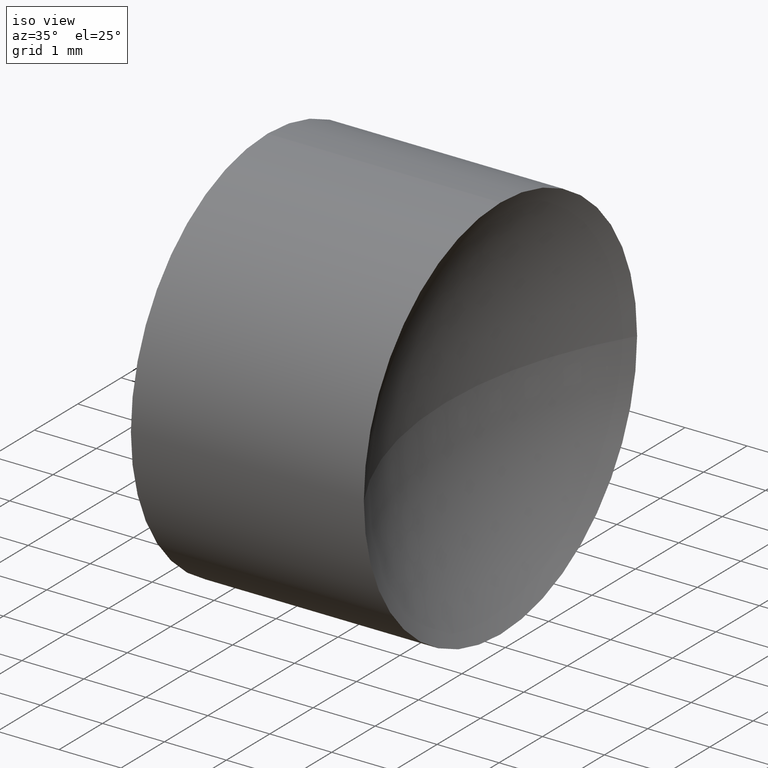
[diagram: clean part render]
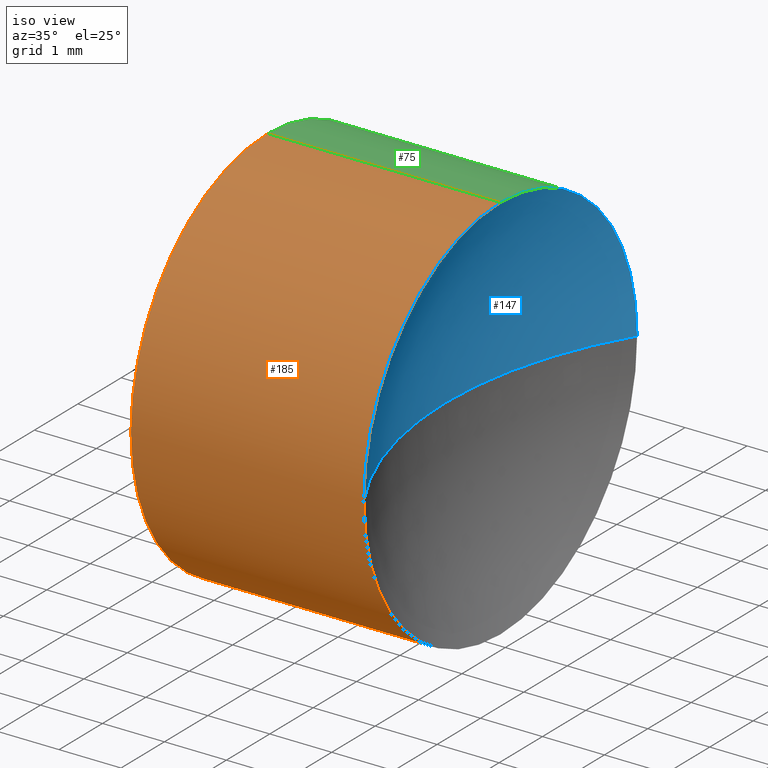
[diagram: same view with three faces highlighted in distinct colors, each labeled with its STEP entity id]
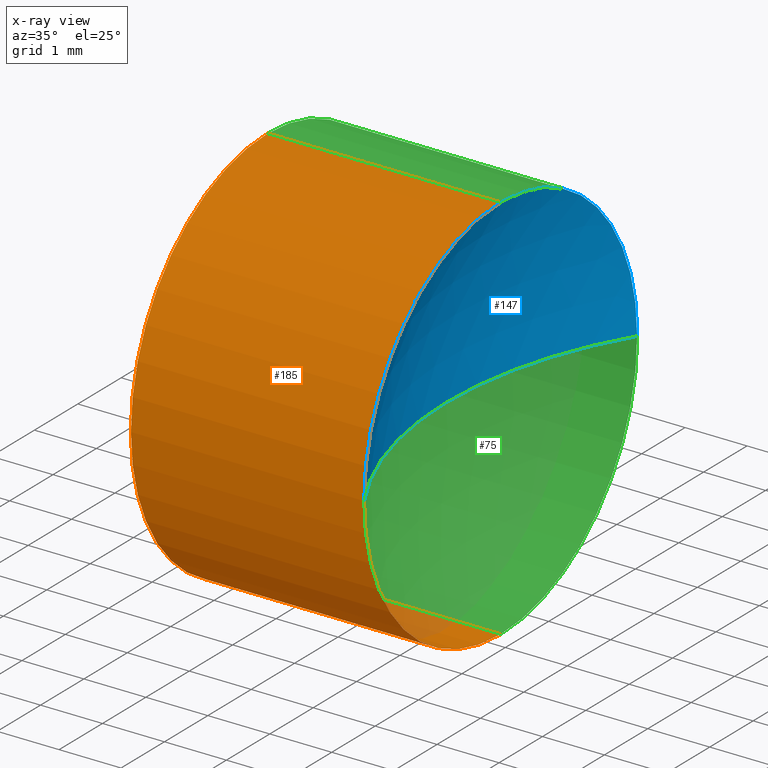
[diagram: x-ray of the same camera — body ghosted, the three highlighted faces saturated]
A machine part, iso view with three faces highlighted in distinct colors.
The next image is the same camera in x-ray (body ghosted, the three faces saturated) — at least one of them is partly hidden behind the body in this view.
Their STEP definitions:

[orange] entity #185 — the highlighted cylindrical surface (partial cylindrical patch) has radius 3.15 mm, axis along (-1, -0, -0).
#7 = VERTEX_POINT ( 'NONE', #131 ) ;
#13 = CIRCLE ( 'NONE', #128, 3.149999999999998100 ) ;
#15 = CARTESIAN_POINT ( 'NONE',  ( 22.13222785822552300, 9.894520574597477100, -3.857637417314163200E-016 ) ) ;
#18 = CARTESIAN_POINT ( 'NONE',  ( 21.22493055706841100, 13.04452057459747900, 3.150000000000001700 ) ) ;
#19 = DIRECTION ( 'NONE',  ( -1.000000000000000000, -0.0000000000000000000, -0.0000000000000000000 ) ) ;
#21 = AXIS2_PLACEMENT_3D ( 'NONE', #68, #142, #182 ) ;
#32 = AXIS2_PLACEMENT_3D ( 'NONE', #135, #95, #213 ) ;
#42 = VECTOR ( 'NONE', #61, 1000.000000000000000 ) ;
#48 = CARTESIAN_POINT ( 'NONE',  ( 21.22493055706841100, 13.04452057459747900, 0.0000000000000000000 ) ) ;
#50 = ORIENTED_EDGE ( 'NONE', *, *, #93, .T. ) ;
#51 = DIRECTION ( 'NONE',  ( -1.000000000000000000, -0.0000000000000000000, -0.0000000000000000000 ) ) ;
#61 = DIRECTION ( 'NONE',  ( -1.000000000000000000, -0.0000000000000000000, -0.0000000000000000000 ) ) ;
#63 = CARTESIAN_POINT ( 'NONE',  ( 25.89147788526684100, 13.04452057459747900, 3.149999999999998100 ) ) ;
#68 = CARTESIAN_POINT ( 'NONE',  ( 25.89147788526684100, 13.04452057459747900, 0.0000000000000000000 ) ) ;
#69 = VERTEX_POINT ( 'NONE', #108 ) ;
#74 = EDGE_CURVE ( 'NONE', #229, #99, #105, .T. ) ;
#76 = ORIENTED_EDGE ( 'NONE', *, *, #157, .F. ) ;
#77 = CARTESIAN_POINT ( 'NONE',  ( 25.89147788526684100, 13.04452057459747900, 0.0000000000000000000 ) ) ;
#80 = CARTESIAN_POINT ( 'NONE',  ( 21.22493055706841100, 13.04452057459747900, -3.150000000000001700 ) ) ;
#87 = AXIS2_PLACEMENT_3D ( 'NONE', #230, #51, #161 ) ;
#91 = EDGE_CURVE ( 'NONE', #99, #148, #13, .T. ) ;
#93 = EDGE_CURVE ( 'NONE', #148, #69, #210, .T. ) ;
#95 = DIRECTION ( 'NONE',  ( -1.000000000000000000, -0.0000000000000000000, -0.0000000000000000000 ) ) ;
#97 = DIRECTION ( 'NONE',  ( 0.0000000000000000000, 0.0000000000000000000, 1.000000000000000000 ) ) ;
#99 = VERTEX_POINT ( 'NONE', #173 ) ;
#102 = CARTESIAN_POINT ( 'NONE',  ( 25.89147788526684100, 13.04452057459747900, -3.149999999999998100 ) ) ;
#105 = CIRCLE ( 'NONE', #21, 3.149999999999998100 ) ;
#107 = ORIENTED_EDGE ( 'NONE', *, *, #109, .F. ) ;
#108 = CARTESIAN_POINT ( 'NONE',  ( 22.13222785822552300, 13.04452057459747900, 3.150000000000001700 ) ) ;
#109 = EDGE_CURVE ( 'NONE', #229, #7, #159, .T. ) ;
#117 = DIRECTION ( 'NONE',  ( -1.000000000000000000, -0.0000000000000000000, -0.0000000000000000000 ) ) ;
#128 = AXIS2_PLACEMENT_3D ( 'NONE', #77, #117, #192 ) ;
#129 = CYLINDRICAL_SURFACE ( 'NONE', #227, 3.150000000000001700 ) ;
#130 = ORIENTED_EDGE ( 'NONE', *, *, #91, .T. ) ;
#131 = CARTESIAN_POINT ( 'NONE',  ( 22.13222785822552300, 13.04452057459747900, -3.150000000000001700 ) ) ;
#132 = EDGE_CURVE ( 'NONE', #7, #160, #165, .T. ) ;
#133 = ORIENTED_EDGE ( 'NONE', *, *, #74, .T. ) ;
#135 = CARTESIAN_POINT ( 'NONE',  ( 22.13222785822552300, 13.04452057459747900, 0.0000000000000000000 ) ) ;
#142 = DIRECTION ( 'NONE',  ( -1.000000000000000000, -0.0000000000000000000, -0.0000000000000000000 ) ) ;
#144 = ORIENTED_EDGE ( 'NONE', *, *, #132, .F. ) ;
#148 = VERTEX_POINT ( 'NONE', #63 ) ;
#152 = DIRECTION ( 'NONE',  ( -1.000000000000000000, -0.0000000000000000000, -0.0000000000000000000 ) ) ;
#157 = EDGE_CURVE ( 'NONE', #160, #69, #180, .T. ) ;
#159 = LINE ( 'NONE', #80, #42 ) ;
#160 = VERTEX_POINT ( 'NONE', #15 ) ;
#161 = DIRECTION ( 'NONE',  ( 0.0000000000000000000, 0.0000000000000000000, 1.000000000000000000 ) ) ;
#165 = CIRCLE ( 'NONE', #32, 3.150000000000001700 ) ;
#173 = CARTESIAN_POINT ( 'NONE',  ( 25.89147788526684100, 9.894520574597480700, 0.0000000000000000000 ) ) ;
#180 = CIRCLE ( 'NONE', #87, 3.150000000000001700 ) ;
#182 = DIRECTION ( 'NONE',  ( 0.0000000000000000000, 0.0000000000000000000, 1.000000000000000000 ) ) ;
#185 = ADVANCED_FACE ( 'NONE', ( #219 ), #129, .T. ) ;
#192 = DIRECTION ( 'NONE',  ( 0.0000000000000000000, 0.0000000000000000000, 1.000000000000000000 ) ) ;
#197 = VECTOR ( 'NONE', #152, 1000.000000000000000 ) ;
#210 = LINE ( 'NONE', #18, #197 ) ;
#213 = DIRECTION ( 'NONE',  ( 0.0000000000000000000, 0.0000000000000000000, 1.000000000000000000 ) ) ;
#219 = FACE_OUTER_BOUND ( 'NONE', #220, .T. ) ;
#220 = EDGE_LOOP ( 'NONE', ( #107, #133, #130, #50, #76, #144 ) ) ;
#227 = AXIS2_PLACEMENT_3D ( 'NONE', #48, #19, #97 ) ;
#229 = VERTEX_POINT ( 'NONE', #102 ) ;
#230 = CARTESIAN_POINT ( 'NONE',  ( 22.13222785822552300, 13.04452057459747900, 0.0000000000000000000 ) ) ;

[blue] entity #147 — the highlighted spherical surface has radius 6.08 mm.
#5 = EDGE_CURVE ( 'NONE', #199, #67, #150, .T. ) ;
#8 = DIRECTION ( 'NONE',  ( 0.0000000000000000000, -1.224646799147353200E-016, 1.000000000000000000 ) ) ;
#13 = CIRCLE ( 'NONE', #128, 3.149999999999998100 ) ;
#26 = DIRECTION ( 'NONE',  ( 0.0000000000000000000, -1.000000000000000000, -1.224646799147353200E-016 ) ) ;
#27 = ORIENTED_EDGE ( 'NONE', *, *, #119, .T. ) ;
#39 = ORIENTED_EDGE ( 'NONE', *, *, #79, .F. ) ;
#41 = DIRECTION ( 'NONE',  ( -1.000000000000000000, -0.0000000000000000000, -0.0000000000000000000 ) ) ;
#53 = CARTESIAN_POINT ( 'NONE',  ( 31.09185287174618400, 13.04452057459747900, 0.0000000000000000000 ) ) ;
#63 = CARTESIAN_POINT ( 'NONE',  ( 25.89147788526684100, 13.04452057459747900, 3.149999999999998100 ) ) ;
#67 = VERTEX_POINT ( 'NONE', #111 ) ;
#77 = CARTESIAN_POINT ( 'NONE',  ( 25.89147788526684100, 13.04452057459747900, 0.0000000000000000000 ) ) ;
#78 = CARTESIAN_POINT ( 'NONE',  ( 31.09185287174618400, 13.04452057459747900, 0.0000000000000000000 ) ) ;
#79 = EDGE_CURVE ( 'NONE', #148, #199, #83, .T. ) ;
#83 = CIRCLE ( 'NONE', #186, 3.149999999999998100 ) ;
#88 = SPHERICAL_SURFACE ( 'NONE', #175, 6.080000000000001800 ) ;
#91 = EDGE_CURVE ( 'NONE', #99, #148, #13, .T. ) ;
#99 = VERTEX_POINT ( 'NONE', #173 ) ;
#103 = ORIENTED_EDGE ( 'NONE', *, *, #91, .F. ) ;
#111 = CARTESIAN_POINT ( 'NONE',  ( 25.01185287174618200, 13.04452057459747900, 0.0000000000000000000 ) ) ;
#117 = DIRECTION ( 'NONE',  ( -1.000000000000000000, -0.0000000000000000000, -0.0000000000000000000 ) ) ;
#119 = EDGE_CURVE ( 'NONE', #99, #67, #124, .T. ) ;
#121 = DIRECTION ( 'NONE',  ( 0.0000000000000000000, 0.0000000000000000000, 1.000000000000000000 ) ) ;
#122 = CARTESIAN_POINT ( 'NONE',  ( 25.89147788526684100, 16.19452057459747600, 3.857637417314161700E-016 ) ) ;
#124 = CIRCLE ( 'NONE', #216, 6.080000000000001800 ) ;
#128 = AXIS2_PLACEMENT_3D ( 'NONE', #77, #117, #192 ) ;
#134 = DIRECTION ( 'NONE',  ( -1.000000000000000000, 0.0000000000000000000, 0.0000000000000000000 ) ) ;
#146 = FACE_OUTER_BOUND ( 'NONE', #171, .T. ) ;
#147 = ADVANCED_FACE ( 'NONE', ( #146 ), #88, .F. ) ;
#148 = VERTEX_POINT ( 'NONE', #63 ) ;
#150 = CIRCLE ( 'NONE', #196, 6.080000000000001800 ) ;
#154 = CARTESIAN_POINT ( 'NONE',  ( 31.09185287174618400, 13.04452057459747900, 0.0000000000000000000 ) ) ;
#171 = EDGE_LOOP ( 'NONE', ( #223, #39, #103, #27 ) ) ;
#173 = CARTESIAN_POINT ( 'NONE',  ( 25.89147788526684100, 9.894520574597480700, 0.0000000000000000000 ) ) ;
#174 = DIRECTION ( 'NONE',  ( 0.0000000000000000000, -1.000000000000000000, 0.0000000000000000000 ) ) ;
#175 = AXIS2_PLACEMENT_3D ( 'NONE', #154, #121, #174 ) ;
#186 = AXIS2_PLACEMENT_3D ( 'NONE', #221, #41, #194 ) ;
#192 = DIRECTION ( 'NONE',  ( 0.0000000000000000000, 0.0000000000000000000, 1.000000000000000000 ) ) ;
#194 = DIRECTION ( 'NONE',  ( 0.0000000000000000000, 0.0000000000000000000, 1.000000000000000000 ) ) ;
#196 = AXIS2_PLACEMENT_3D ( 'NONE', #53, #8, #26 ) ;
#199 = VERTEX_POINT ( 'NONE', #122 ) ;
#216 = AXIS2_PLACEMENT_3D ( 'NONE', #78, #232, #134 ) ;
#221 = CARTESIAN_POINT ( 'NONE',  ( 25.89147788526684100, 13.04452057459747900, 0.0000000000000000000 ) ) ;
#223 = ORIENTED_EDGE ( 'NONE', *, *, #5, .F. ) ;
#232 = DIRECTION ( 'NONE',  ( 0.0000000000000000000, 0.0000000000000000000, -1.000000000000000000 ) ) ;

[green] entity #75 — the highlighted cylindrical surface (partial cylindrical patch) has radius 3.15 mm, axis along (-1, -0, -0).
#3 = CYLINDRICAL_SURFACE ( 'NONE', #149, 3.150000000000001700 ) ;
#7 = VERTEX_POINT ( 'NONE', #131 ) ;
#10 = CARTESIAN_POINT ( 'NONE',  ( 25.89147788526684100, 13.04452057459747900, 0.0000000000000000000 ) ) ;
#14 = VERTEX_POINT ( 'NONE', #225 ) ;
#18 = CARTESIAN_POINT ( 'NONE',  ( 21.22493055706841100, 13.04452057459747900, 3.150000000000001700 ) ) ;
#23 = CARTESIAN_POINT ( 'NONE',  ( 21.22493055706841100, 13.04452057459747900, 0.0000000000000000000 ) ) ;
#30 = CIRCLE ( 'NONE', #212, 3.149999999999998100 ) ;
#38 = CIRCLE ( 'NONE', #202, 3.150000000000001700 ) ;
#40 = DIRECTION ( 'NONE',  ( -1.000000000000000000, -0.0000000000000000000, -0.0000000000000000000 ) ) ;
#41 = DIRECTION ( 'NONE',  ( -1.000000000000000000, -0.0000000000000000000, -0.0000000000000000000 ) ) ;
#42 = VECTOR ( 'NONE', #61, 1000.000000000000000 ) ;
#55 = DIRECTION ( 'NONE',  ( -1.000000000000000000, -0.0000000000000000000, -0.0000000000000000000 ) ) ;
#60 = ORIENTED_EDGE ( 'NONE', *, *, #170, .F. ) ;
#61 = DIRECTION ( 'NONE',  ( -1.000000000000000000, -0.0000000000000000000, -0.0000000000000000000 ) ) ;
#62 = FACE_OUTER_BOUND ( 'NONE', #201, .T. ) ;
#63 = CARTESIAN_POINT ( 'NONE',  ( 25.89147788526684100, 13.04452057459747900, 3.149999999999998100 ) ) ;
#69 = VERTEX_POINT ( 'NONE', #108 ) ;
#70 = EDGE_CURVE ( 'NONE', #199, #229, #30, .T. ) ;
#71 = EDGE_CURVE ( 'NONE', #14, #7, #155, .T. ) ;
#73 = ORIENTED_EDGE ( 'NONE', *, *, #93, .F. ) ;
#75 = ADVANCED_FACE ( 'NONE', ( #62 ), #3, .T. ) ;
#79 = EDGE_CURVE ( 'NONE', #148, #199, #83, .T. ) ;
#80 = CARTESIAN_POINT ( 'NONE',  ( 21.22493055706841100, 13.04452057459747900, -3.150000000000001700 ) ) ;
#83 = CIRCLE ( 'NONE', #186, 3.149999999999998100 ) ;
#84 = DIRECTION ( 'NONE',  ( -1.000000000000000000, -0.0000000000000000000, -0.0000000000000000000 ) ) ;
#85 = ORIENTED_EDGE ( 'NONE', *, *, #71, .F. ) ;
#93 = EDGE_CURVE ( 'NONE', #148, #69, #210, .T. ) ;
#101 = DIRECTION ( 'NONE',  ( 0.0000000000000000000, 0.0000000000000000000, 1.000000000000000000 ) ) ;
#102 = CARTESIAN_POINT ( 'NONE',  ( 25.89147788526684100, 13.04452057459747900, -3.149999999999998100 ) ) ;
#104 = DIRECTION ( 'NONE',  ( 0.0000000000000000000, 0.0000000000000000000, 1.000000000000000000 ) ) ;
#108 = CARTESIAN_POINT ( 'NONE',  ( 22.13222785822552300, 13.04452057459747900, 3.150000000000001700 ) ) ;
#109 = EDGE_CURVE ( 'NONE', #229, #7, #159, .T. ) ;
#116 = ORIENTED_EDGE ( 'NONE', *, *, #79, .T. ) ;
#120 = CARTESIAN_POINT ( 'NONE',  ( 22.13222785822552300, 13.04452057459747900, 0.0000000000000000000 ) ) ;
#122 = CARTESIAN_POINT ( 'NONE',  ( 25.89147788526684100, 16.19452057459747600, 3.857637417314161700E-016 ) ) ;
#127 = DIRECTION ( 'NONE',  ( -1.000000000000000000, -0.0000000000000000000, -0.0000000000000000000 ) ) ;
#131 = CARTESIAN_POINT ( 'NONE',  ( 22.13222785822552300, 13.04452057459747900, -3.150000000000001700 ) ) ;
#148 = VERTEX_POINT ( 'NONE', #63 ) ;
#149 = AXIS2_PLACEMENT_3D ( 'NONE', #23, #40, #198 ) ;
#152 = DIRECTION ( 'NONE',  ( -1.000000000000000000, -0.0000000000000000000, -0.0000000000000000000 ) ) ;
#155 = CIRCLE ( 'NONE', #218, 3.150000000000001700 ) ;
#159 = LINE ( 'NONE', #80, #42 ) ;
#166 = ORIENTED_EDGE ( 'NONE', *, *, #109, .T. ) ;
#170 = EDGE_CURVE ( 'NONE', #69, #14, #38, .T. ) ;
#177 = CARTESIAN_POINT ( 'NONE',  ( 22.13222785822552300, 13.04452057459747900, 0.0000000000000000000 ) ) ;
#186 = AXIS2_PLACEMENT_3D ( 'NONE', #221, #41, #194 ) ;
#194 = DIRECTION ( 'NONE',  ( 0.0000000000000000000, 0.0000000000000000000, 1.000000000000000000 ) ) ;
#197 = VECTOR ( 'NONE', #152, 1000.000000000000000 ) ;
#198 = DIRECTION ( 'NONE',  ( 0.0000000000000000000, 0.0000000000000000000, 1.000000000000000000 ) ) ;
#199 = VERTEX_POINT ( 'NONE', #122 ) ;
#201 = EDGE_LOOP ( 'NONE', ( #214, #166, #85, #60, #73, #116 ) ) ;
#202 = AXIS2_PLACEMENT_3D ( 'NONE', #120, #84, #101 ) ;
#207 = DIRECTION ( 'NONE',  ( 0.0000000000000000000, 0.0000000000000000000, 1.000000000000000000 ) ) ;
#210 = LINE ( 'NONE', #18, #197 ) ;
#212 = AXIS2_PLACEMENT_3D ( 'NONE', #10, #55, #207 ) ;
#214 = ORIENTED_EDGE ( 'NONE', *, *, #70, .T. ) ;
#218 = AXIS2_PLACEMENT_3D ( 'NONE', #177, #127, #104 ) ;
#221 = CARTESIAN_POINT ( 'NONE',  ( 25.89147788526684100, 13.04452057459747900, 0.0000000000000000000 ) ) ;
#225 = CARTESIAN_POINT ( 'NONE',  ( 22.13222785822552300, 16.19452057459747600, 0.0000000000000000000 ) ) ;
#229 = VERTEX_POINT ( 'NONE', #102 ) ;